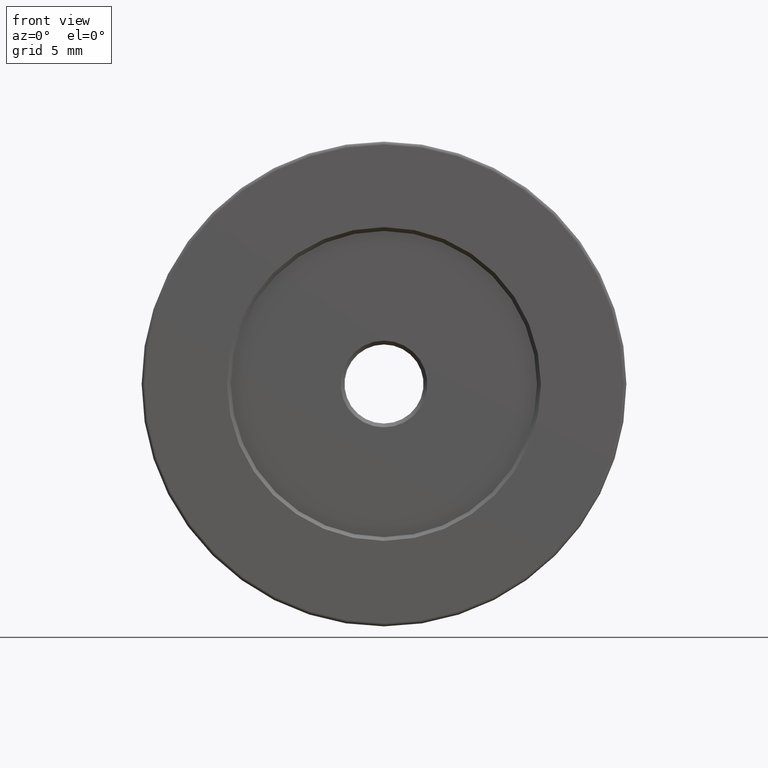
[diagram: clean part render]
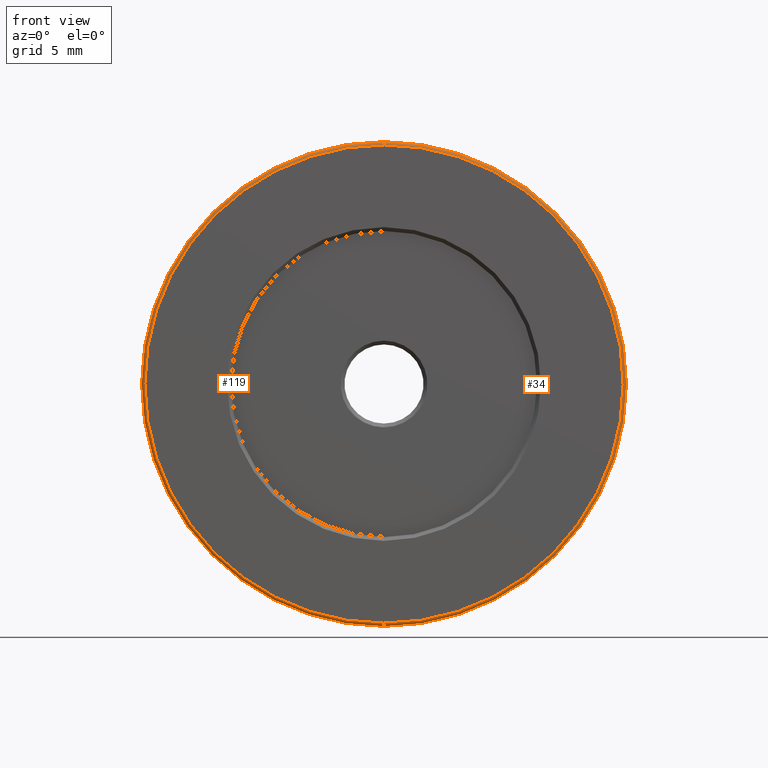
[diagram: same view with one multi-face feature highlighted, each face labeled with its STEP entity id]
A machine part, front view. The highlighted faces form ONE feature: a constant-radius fillet chain: 2 tangent blend faces with common blend radius 0.25 mm. The faces share edges in the B-rep.
Their STEP definitions:
[1] entity #119 (Torus):
#16 = EDGE_CURVE ( 'NONE', #221, #38, #50, .T. ) ;
#38 = VERTEX_POINT ( 'NONE', #213 ) ;
#50 = CIRCLE ( 'NONE', #154, 0.2500000000000002220 ) ;
#61 = DIRECTION ( 'NONE',  ( -1.000000000000000000, 0.000000000000000000, 0.000000000000000000 ) ) ;
#69 = DIRECTION ( 'NONE',  ( 1.000000000000000000, -0.000000000000000000, 1.224646799147353207E-16 ) ) ;
#70 = VERTEX_POINT ( 'NONE', #330 ) ;
#71 = DIRECTION ( 'NONE',  ( -0.000000000000000000, -1.000000000000000000, -0.000000000000000000 ) ) ;
#76 = DIRECTION ( 'NONE',  ( 0.000000000000000000, 0.000000000000000000, 1.000000000000000000 ) ) ;
#88 = CIRCLE ( 'NONE', #428, 18.99999999999999645 ) ;
#119 = ADVANCED_FACE ( 'NONE', ( #605 ), #525, .T. ) ;
#128 = ORIENTED_EDGE ( 'NONE', *, *, #16, .F. ) ;
#138 = EDGE_CURVE ( 'NONE', #70, #221, #220, .T. ) ;
#147 = EDGE_CURVE ( 'NONE', #70, #494, #301, .T. ) ;
#154 = AXIS2_PLACEMENT_3D ( 'NONE', #489, #69, #397 ) ;
#156 = CARTESIAN_POINT ( 'NONE',  ( -7.546808913101048510, -12.64359512730272783, 38.00000000000000000 ) ) ;
#177 = ORIENTED_EDGE ( 'NONE', *, *, #138, .F. ) ;
#186 = ORIENTED_EDGE ( 'NONE', *, *, #147, .T. ) ;
#196 = EDGE_LOOP ( 'NONE', ( #128, #177, #186, #296 ) ) ;
#199 = DIRECTION ( 'NONE',  ( 0.000000000000000000, 0.000000000000000000, 1.000000000000000000 ) ) ;
#213 = CARTESIAN_POINT ( 'NONE',  ( -7.546808913101048510, -12.64359512730272783, 19.00000000000000000 ) ) ;
#220 = CIRCLE ( 'NONE', #273, 18.74999999999999645 ) ;
#221 = VERTEX_POINT ( 'NONE', #545 ) ;
#247 = EDGE_CURVE ( 'NONE', #38, #494, #88, .T. ) ;
#255 = CARTESIAN_POINT ( 'NONE',  ( -7.546808913101048510, -12.89359512730272783, 38.00000000000000000 ) ) ;
#273 = AXIS2_PLACEMENT_3D ( 'NONE', #255, #71, #76 ) ;
#296 = ORIENTED_EDGE ( 'NONE', *, *, #247, .F. ) ;
#301 = CIRCLE ( 'NONE', #455, 0.2500000000000002220 ) ;
#330 = CARTESIAN_POINT ( 'NONE',  ( -7.546808913101048510, -12.89359512730272783, 56.74999999999999289 ) ) ;
#335 = CARTESIAN_POINT ( 'NONE',  ( -7.546808913101045846, -12.64359512730272783, 56.99999999999999289 ) ) ;
#386 = AXIS2_PLACEMENT_3D ( 'NONE', #476, #511, #199 ) ;
#395 = CARTESIAN_POINT ( 'NONE',  ( -7.546808913101048510, -12.64359512730272783, 56.74999999999999289 ) ) ;
#397 = DIRECTION ( 'NONE',  ( 0.000000000000000000, 0.000000000000000000, -1.000000000000000000 ) ) ;
#428 = AXIS2_PLACEMENT_3D ( 'NONE', #156, #436, #534 ) ;
#436 = DIRECTION ( 'NONE',  ( 0.000000000000000000, 1.000000000000000000, 0.000000000000000000 ) ) ;
#455 = AXIS2_PLACEMENT_3D ( 'NONE', #395, #61, #479 ) ;
#476 = CARTESIAN_POINT ( 'NONE',  ( -7.546808913101048510, -12.64359512730272783, 38.00000000000000000 ) ) ;
#479 = DIRECTION ( 'NONE',  ( 0.000000000000000000, 0.000000000000000000, 1.000000000000000000 ) ) ;
#489 = CARTESIAN_POINT ( 'NONE',  ( -7.546808913101045846, -12.64359512730272783, 19.25000000000000000 ) ) ;
#494 = VERTEX_POINT ( 'NONE', #335 ) ;
#511 = DIRECTION ( 'NONE',  ( 0.000000000000000000, 1.000000000000000000, 0.000000000000000000 ) ) ;
#525 = TOROIDAL_SURFACE ( 'NONE', #386, 18.75000000000000000, 0.2500000000000000000 ) ;
#534 = DIRECTION ( 'NONE',  ( 0.000000000000000000, 0.000000000000000000, 1.000000000000000000 ) ) ;
#545 = CARTESIAN_POINT ( 'NONE',  ( -7.546808913101045846, -12.89359512730272783, 19.25000000000000000 ) ) ;
#605 = FACE_OUTER_BOUND ( 'NONE', #196, .T. ) ;
[2] entity #34 (Torus):
#16 = EDGE_CURVE ( 'NONE', #221, #38, #50, .T. ) ;
#20 = DIRECTION ( 'NONE',  ( 0.000000000000000000, 0.000000000000000000, 1.000000000000000000 ) ) ;
#32 = CARTESIAN_POINT ( 'NONE',  ( -7.546808913101048510, -12.64359512730272783, 38.00000000000000000 ) ) ;
#34 = ADVANCED_FACE ( 'NONE', ( #307 ), #282, .T. ) ;
#38 = VERTEX_POINT ( 'NONE', #213 ) ;
#40 = AXIS2_PLACEMENT_3D ( 'NONE', #521, #467, #381 ) ;
#50 = CIRCLE ( 'NONE', #154, 0.2500000000000002220 ) ;
#61 = DIRECTION ( 'NONE',  ( -1.000000000000000000, 0.000000000000000000, 0.000000000000000000 ) ) ;
#69 = DIRECTION ( 'NONE',  ( 1.000000000000000000, -0.000000000000000000, 1.224646799147353207E-16 ) ) ;
#70 = VERTEX_POINT ( 'NONE', #330 ) ;
#72 = EDGE_CURVE ( 'NONE', #221, #70, #240, .T. ) ;
#147 = EDGE_CURVE ( 'NONE', #70, #494, #301, .T. ) ;
#154 = AXIS2_PLACEMENT_3D ( 'NONE', #489, #69, #397 ) ;
#165 = CARTESIAN_POINT ( 'NONE',  ( -7.546808913101048510, -12.64359512730272783, 38.00000000000000000 ) ) ;
#213 = CARTESIAN_POINT ( 'NONE',  ( -7.546808913101048510, -12.64359512730272783, 19.00000000000000000 ) ) ;
#221 = VERTEX_POINT ( 'NONE', #545 ) ;
#228 = ORIENTED_EDGE ( 'NONE', *, *, #16, .T. ) ;
#240 = CIRCLE ( 'NONE', #40, 18.74999999999999645 ) ;
#262 = DIRECTION ( 'NONE',  ( 0.000000000000000000, 1.000000000000000000, 0.000000000000000000 ) ) ;
#278 = ORIENTED_EDGE ( 'NONE', *, *, #429, .F. ) ;
#282 = TOROIDAL_SURFACE ( 'NONE', #312, 18.75000000000000000, 0.2500000000000000000 ) ;
#301 = CIRCLE ( 'NONE', #455, 0.2500000000000002220 ) ;
#307 = FACE_OUTER_BOUND ( 'NONE', #548, .T. ) ;
#312 = AXIS2_PLACEMENT_3D ( 'NONE', #165, #262, #20 ) ;
#330 = CARTESIAN_POINT ( 'NONE',  ( -7.546808913101048510, -12.89359512730272783, 56.74999999999999289 ) ) ;
#335 = CARTESIAN_POINT ( 'NONE',  ( -7.546808913101045846, -12.64359512730272783, 56.99999999999999289 ) ) ;
#357 = DIRECTION ( 'NONE',  ( 0.000000000000000000, 1.000000000000000000, 0.000000000000000000 ) ) ;
#358 = CIRCLE ( 'NONE', #584, 18.99999999999999645 ) ;
#381 = DIRECTION ( 'NONE',  ( 0.000000000000000000, 0.000000000000000000, 1.000000000000000000 ) ) ;
#395 = CARTESIAN_POINT ( 'NONE',  ( -7.546808913101048510, -12.64359512730272783, 56.74999999999999289 ) ) ;
#397 = DIRECTION ( 'NONE',  ( 0.000000000000000000, 0.000000000000000000, -1.000000000000000000 ) ) ;
#429 = EDGE_CURVE ( 'NONE', #494, #38, #358, .T. ) ;
#433 = ORIENTED_EDGE ( 'NONE', *, *, #72, .F. ) ;
#455 = AXIS2_PLACEMENT_3D ( 'NONE', #395, #61, #479 ) ;
#457 = ORIENTED_EDGE ( 'NONE', *, *, #147, .F. ) ;
#467 = DIRECTION ( 'NONE',  ( -0.000000000000000000, -1.000000000000000000, -0.000000000000000000 ) ) ;
#479 = DIRECTION ( 'NONE',  ( 0.000000000000000000, 0.000000000000000000, 1.000000000000000000 ) ) ;
#489 = CARTESIAN_POINT ( 'NONE',  ( -7.546808913101045846, -12.64359512730272783, 19.25000000000000000 ) ) ;
#494 = VERTEX_POINT ( 'NONE', #335 ) ;
#521 = CARTESIAN_POINT ( 'NONE',  ( -7.546808913101048510, -12.89359512730272783, 38.00000000000000000 ) ) ;
#545 = CARTESIAN_POINT ( 'NONE',  ( -7.546808913101045846, -12.89359512730272783, 19.25000000000000000 ) ) ;
#548 = EDGE_LOOP ( 'NONE', ( #433, #228, #278, #457 ) ) ;
#549 = DIRECTION ( 'NONE',  ( 0.000000000000000000, 0.000000000000000000, 1.000000000000000000 ) ) ;
#584 = AXIS2_PLACEMENT_3D ( 'NONE', #32, #357, #549 ) ;